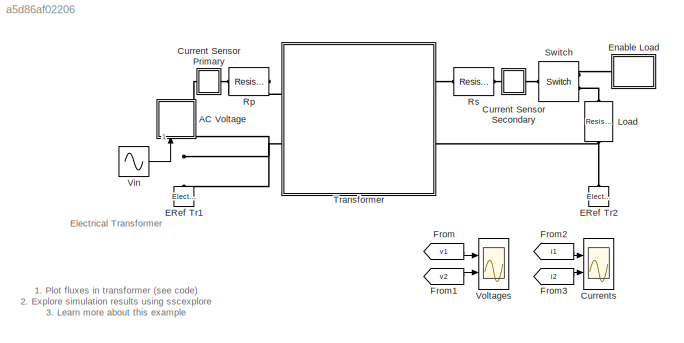
MODEL slx_a5d86af02206
KIND model
CONFIG AbsTol = auto
CONFIG EnableMultiTasking = on
CONFIG FixedStep = auto
CONFIG MaxStep = 5e-5
CONFIG MinStep = auto
CONFIG PreLoadFcn = L1 = 0.75*2.54e-2;  % 0.75 inch\nL2 = 1.5*2.54e-2 ;  % 1.5 inch\nArea = L1*L1;
CONFIG RelTol = 1e-3
CONFIG SampleTimeConstraint = Unconstrained
CONFIG Solver = VariableStepAuto
CONFIG SolverName = VariableStepAuto
CONFIG StartTime = 0.0
CONFIG StopTime = 1
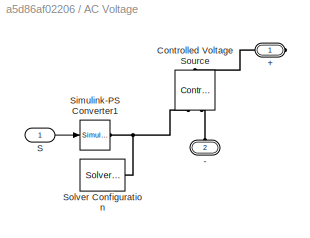
BLOCK [SubSystem] AC Voltage
  Ports = [1, 0, 0, 0, 0, 1, 1]
  RequestExecContextInheritance = off
  Variant = off
BLOCK [PMIOPort] AC Voltage/+
  Port = 1
  Side = Right
BLOCK [PMIOPort] AC Voltage/-
  Port = 2
  Side = Left
BLOCK [Reference] AC Voltage/Controlled Voltage Source  REF=fl_lib/Electrical/Electrical Sources/Controlled Voltage
Source
  Ports = [0, 0, 0, 0, 0, 1, 2]
  SourceBlock = fl_lib/Electrical/Electrical Sources/Controlled Voltage\nSource
  SourceType = Controlled Voltage\nSource
BLOCK [Inport] AC Voltage/S
  IconDisplay = Port number
BLOCK [Reference] AC Voltage/Simulink-PS Converter1  REF=nesl_utility/Simulink-PS
Converter
  Ports = [1, 0, 0, 0, 0, 0, 1]
  SourceBlock = nesl_utility/Simulink-PS\nConverter
  SourceType = Simulink-PS\nConverter
BLOCK [Reference] AC Voltage/Solver Configuration  REF=nesl_utility/Solver
Configuration
  Ports = [0, 0, 0, 0, 0, 0, 1]
  SourceBlock = nesl_utility/Solver\nConfiguration
  SourceType = Solver\nConfiguration
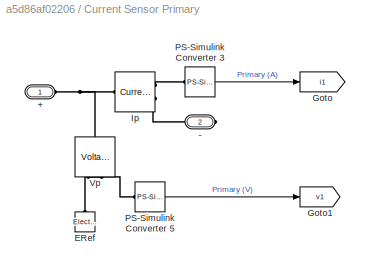
BLOCK [SubSystem] Current Sensor Primary
  Ports = [0, 0, 0, 0, 0, 1, 1]
  RequestExecContextInheritance = off
  Variant = off
BLOCK [PMIOPort] Current Sensor Primary/+
  Port = 1
  Side = Left
BLOCK [PMIOPort] Current Sensor Primary/-
  Port = 2
  Side = Right
BLOCK [Reference] Current Sensor Primary/ERef  REF=fl_lib/Electrical/Electrical Elements/Electrical Reference
  Ports = [0, 0, 0, 0, 0, 1]
  SourceBlock = fl_lib/Electrical/Electrical Elements/Electrical Reference
  SourceType = Electrical Reference
BLOCK [Goto] Current Sensor Primary/Goto
  GotoTag = i1
  TagVisibility = global
BLOCK [Goto] Current Sensor Primary/Goto1
  GotoTag = v1
  TagVisibility = global
BLOCK [Reference] Current Sensor Primary/Ip  REF=fl_lib/Electrical/Electrical Sensors/Current Sensor
  Ports = [0, 0, 0, 0, 0, 1, 2]
  SourceBlock = fl_lib/Electrical/Electrical Sensors/Current Sensor
  SourceType = Current Sensor
BLOCK [Reference] Current Sensor Primary/PS-Simulink Converter 3  REF=nesl_utility/PS-Simulink
Converter
  Ports = [0, 1, 0, 0, 0, 1]
  SourceBlock = nesl_utility/PS-Simulink\nConverter
  SourceType = PS-Simulink\nConverter
BLOCK [Reference] Current Sensor Primary/PS-Simulink Converter 5  REF=nesl_utility/PS-Simulink
Converter
  Ports = [0, 1, 0, 0, 0, 1]
  SourceBlock = nesl_utility/PS-Simulink\nConverter
  SourceType = PS-Simulink\nConverter
BLOCK [Reference] Current Sensor Primary/Vp  REF=fl_lib/Electrical/Electrical Sensors/Voltage Sensor
  Ports = [0, 0, 0, 0, 0, 1, 2]
  SourceBlock = fl_lib/Electrical/Electrical Sensors/Voltage Sensor
  SourceType = Voltage Sensor
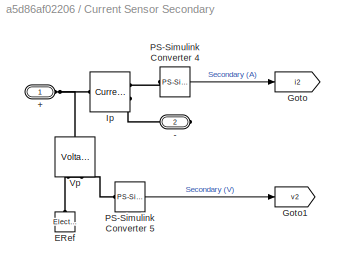
BLOCK [SubSystem] Current Sensor Secondary
  Ports = [0, 0, 0, 0, 0, 1, 1]
  RequestExecContextInheritance = off
  Variant = off
BLOCK [PMIOPort] Current Sensor Secondary/+
  Port = 1
  Side = Left
BLOCK [PMIOPort] Current Sensor Secondary/-
  Port = 2
  Side = Right
BLOCK [Reference] Current Sensor Secondary/ERef  REF=fl_lib/Electrical/Electrical Elements/Electrical Reference
  Ports = [0, 0, 0, 0, 0, 1]
  SourceBlock = fl_lib/Electrical/Electrical Elements/Electrical Reference
  SourceType = Electrical Reference
BLOCK [Goto] Current Sensor Secondary/Goto
  GotoTag = i2
  TagVisibility = global
BLOCK [Goto] Current Sensor Secondary/Goto1
  GotoTag = v2
  TagVisibility = global
BLOCK [Reference] Current Sensor Secondary/Ip  REF=fl_lib/Electrical/Electrical Sensors/Current Sensor
  Ports = [0, 0, 0, 0, 0, 1, 2]
  SourceBlock = fl_lib/Electrical/Electrical Sensors/Current Sensor
  SourceType = Current Sensor
BLOCK [Reference] Current Sensor Secondary/PS-Simulink Converter 4  REF=nesl_utility/PS-Simulink
Converter
  Ports = [0, 1, 0, 0, 0, 1]
  SourceBlock = nesl_utility/PS-Simulink\nConverter
  SourceType = PS-Simulink\nConverter
BLOCK [Reference] Current Sensor Secondary/PS-Simulink Converter 5  REF=nesl_utility/PS-Simulink
Converter
  Ports = [0, 1, 0, 0, 0, 1]
  SourceBlock = nesl_utility/PS-Simulink\nConverter
  SourceType = PS-Simulink\nConverter
BLOCK [Reference] Current Sensor Secondary/Vp  REF=fl_lib/Electrical/Electrical Sensors/Voltage Sensor
  Ports = [0, 0, 0, 0, 0, 1, 2]
  SourceBlock = fl_lib/Electrical/Electrical Sensors/Voltage Sensor
  SourceType = Voltage Sensor
BLOCK [Scope] Currents
  NumInputPorts = 2
  Ports = [2]
  ScopeSpecificationString = Simulink.scopes.TimeScopeBlockCfg('CurrentConfiguration', extmgr.ConfigurationSet(extmgr.Configuration('Core','General UI',true),extmgr.Configuration('Core','Source UI',true),extmgr.Configuration('Sources','WiredSimulink',true,'DataLoggingVariableName','ScopeData1','DataLoggingSaveFormat','StructureWithTime','DataLoggingDecimation','1'),extmgr.Configuration('Visuals','Time Domain',true,'Serialized...<+2372ch>
BLOCK [Reference] ERef Tr1  REF=fl_lib/Electrical/Electrical Elements/Electrical Reference
  Ports = [0, 0, 0, 0, 0, 1]
  SourceBlock = fl_lib/Electrical/Electrical Elements/Electrical Reference
  SourceType = Electrical Reference
BLOCK [Reference] ERef Tr2  REF=fl_lib/Electrical/Electrical Elements/Electrical Reference
  Ports = [0, 0, 0, 0, 0, 1]
  SourceBlock = fl_lib/Electrical/Electrical Elements/Electrical Reference
  SourceType = Electrical Reference
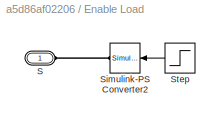
BLOCK [SubSystem] Enable Load
  Ports = [0, 0, 0, 0, 0, 1]
  RequestExecContextInheritance = off
  Variant = off
BLOCK [PMIOPort] Enable Load/S
  Port = 1
  Side = Left
BLOCK [Reference] Enable Load/Simulink-PS Converter2  REF=nesl_utility/Simulink-PS
Converter
  Ports = [1, 0, 0, 0, 0, 0, 1]
  SourceBlock = nesl_utility/Simulink-PS\nConverter
  SourceType = Simulink-PS\nConverter
BLOCK [Step] Enable Load/Step
  SampleTime = 0
  Time = 0.5
BLOCK [From] From
  GotoTag = v1
  TagVisibility = global
BLOCK [From] From1
  GotoTag = v2
  TagVisibility = global
BLOCK [From] From2
  GotoTag = i1
  TagVisibility = global
BLOCK [From] From3
  GotoTag = i2
  TagVisibility = global
BLOCK [Reference] Load  REF=fl_lib/Electrical/Electrical Elements/Resistor
  Ports = [0, 0, 0, 0, 0, 1, 1]
  SourceBlock = fl_lib/Electrical/Electrical Elements/Resistor
  SourceType = Resistor
BLOCK [Reference] Rp  REF=fl_lib/Electrical/Electrical Elements/Resistor
  Ports = [0, 0, 0, 0, 0, 1, 1]
  SourceBlock = fl_lib/Electrical/Electrical Elements/Resistor
  SourceType = Resistor
BLOCK [Reference] Rs  REF=fl_lib/Electrical/Electrical Elements/Resistor
  Ports = [0, 0, 0, 0, 0, 1, 1]
  SourceBlock = fl_lib/Electrical/Electrical Elements/Resistor
  SourceType = Resistor
BLOCK [Reference] Switch  REF=fl_lib/Electrical/Electrical Elements/Switch
  Ports = [0, 0, 0, 0, 0, 1, 2]
  SourceBlock = fl_lib/Electrical/Electrical Elements/Switch
  SourceType = Switch
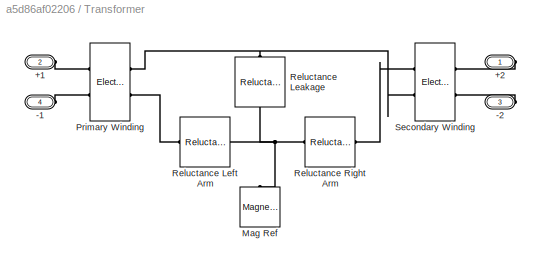
BLOCK [SubSystem] Transformer
  Ports = [0, 0, 0, 0, 0, 2, 2]
  RequestExecContextInheritance = off
  Tag = PublishSubsystem
  Variant = off
BLOCK [PMIOPort] Transformer/+1
  Port = 2
  Side = Left
BLOCK [PMIOPort] Transformer/+2
  Port = 1
  Side = Right
BLOCK [PMIOPort] Transformer/-1
  Port = 4
  Side = Left
BLOCK [PMIOPort] Transformer/-2
  Port = 3
  Side = Right
BLOCK [Reference] Transformer/Mag Ref  REF=fl_lib/Magnetic/Magnetic Elements/Magnetic Reference
  Ports = [0, 0, 0, 0, 0, 1]
  SourceBlock = fl_lib/Magnetic/Magnetic Elements/Magnetic Reference
  SourceType = Magnetic Reference
BLOCK [Reference] Transformer/Primary Winding  REF=fl_lib/Magnetic/Magnetic Elements/Electromagnetic
Converter
  Ports = [0, 0, 0, 0, 0, 2, 2]
  SourceBlock = fl_lib/Magnetic/Magnetic Elements/Electromagnetic\nConverter
  SourceType = Electromagnetic\nConverter
BLOCK [Reference] Transformer/Reluctance Leakage  REF=fl_lib/Magnetic/Magnetic Elements/Reluctance
  Ports = [0, 0, 0, 0, 0, 1, 1]
  SourceBlock = fl_lib/Magnetic/Magnetic Elements/Reluctance
  SourceType = Reluctance
BLOCK [Reference] Transformer/Reluctance Left Arm  REF=fl_lib/Magnetic/Magnetic Elements/Reluctance
  Ports = [0, 0, 0, 0, 0, 1, 1]
  SourceBlock = fl_lib/Magnetic/Magnetic Elements/Reluctance
  SourceType = Reluctance
BLOCK [Reference] Transformer/Reluctance Right Arm  REF=fl_lib/Magnetic/Magnetic Elements/Reluctance
  Ports = [0, 0, 0, 0, 0, 1, 1]
  SourceBlock = fl_lib/Magnetic/Magnetic Elements/Reluctance
  SourceType = Reluctance
BLOCK [Reference] Transformer/Secondary Winding  REF=fl_lib/Magnetic/Magnetic Elements/Electromagnetic
Converter
  Ports = [0, 0, 0, 0, 0, 2, 2]
  SourceBlock = fl_lib/Magnetic/Magnetic Elements/Electromagnetic\nConverter
  SourceType = Electromagnetic\nConverter
BLOCK [Sin] Vin
  Amplitude = 120*sqrt(2)
  Frequency = 2*pi*60
  Phase = pi/2
  Ports = [0, 1]
  SampleTime = 0
BLOCK [Scope] Voltages
  NumInputPorts = 2
  Ports = [2]
  ScopeSpecificationString = Simulink.scopes.TimeScopeBlockCfg('CurrentConfiguration', extmgr.ConfigurationSet(extmgr.Configuration('Core','General UI',true),extmgr.Configuration('Core','Source UI',true),extmgr.Configuration('Sources','WiredSimulink',true,'DataLoggingVariableName','ScopeData2','DataLoggingSaveFormat','StructureWithTime','DataLoggingDecimation','1'),extmgr.Configuration('Visuals','Time Domain',true,'Serialized...<+2344ch>
ANNOTATION (root): 1. Plot fluxes in transformer ( see code ) 2. Explore simulation results using sscexplore 3. Learn more about this example
ANNOTATION (root): Electrical Transformer
LINE AC Voltage/S:1 -> AC Voltage/Simulink-PS Converter1:1
LINE Current Sensor Primary/PS-Simulink Converter 3:1 -> Current Sensor Primary/Goto:1
LINE Current Sensor Primary/PS-Simulink Converter 5:1 -> Current Sensor Primary/Goto1:1
LINE Current Sensor Secondary/PS-Simulink Converter 4:1 -> Current Sensor Secondary/Goto:1
LINE Current Sensor Secondary/PS-Simulink Converter 5:1 -> Current Sensor Secondary/Goto1:1
LINE Enable Load/Step:1 -> Enable Load/Simulink-PS Converter2:1
LINE From1:1 -> Voltages:2
LINE From2:1 -> Currents:1
LINE From3:1 -> Currents:2
LINE From:1 -> Voltages:1
LINE Vin:1 -> AC Voltage:1
PLINE AC Voltage/+:RConn1 -- AC Voltage/Controlled Voltage Source:LConn1
PLINE AC Voltage/-:RConn1 -- AC Voltage/Controlled Voltage Source:RConn2
PNET net1: AC Voltage/Controlled Voltage Source:RConn1 -- AC Voltage/Simulink-PS Converter1:RConn1 -- AC Voltage/Solver Configuration:RConn1
PNET net2: AC Voltage:LConn1 -- ERef Tr1:LConn1 -- Transformer:LConn2
PLINE AC Voltage:RConn1 -- Current Sensor Primary:LConn1
PNET net3: Current Sensor Primary/+:RConn1 -- Current Sensor Primary/Ip:LConn1 -- Current Sensor Primary/Vp:LConn1
PLINE Current Sensor Primary/-:RConn1 -- Current Sensor Primary/Ip:RConn2
PLINE Current Sensor Primary/ERef:LConn1 -- Current Sensor Primary/Vp:RConn2
PLINE Current Sensor Primary/Ip:RConn1 -- Current Sensor Primary/PS-Simulink Converter 3:LConn1
PLINE Current Sensor Primary/PS-Simulink Converter 5:LConn1 -- Current Sensor Primary/Vp:RConn1
PLINE Current Sensor Primary:RConn1 -- Rp:RConn1
PNET net4: Current Sensor Secondary/+:RConn1 -- Current Sensor Secondary/Ip:LConn1 -- Current Sensor Secondary/Vp:LConn1
PLINE Current Sensor Secondary/-:RConn1 -- Current Sensor Secondary/Ip:RConn2
PLINE Current Sensor Secondary/ERef:LConn1 -- Current Sensor Secondary/Vp:RConn2
PLINE Current Sensor Secondary/Ip:RConn1 -- Current Sensor Secondary/PS-Simulink Converter 4:LConn1
PLINE Current Sensor Secondary/PS-Simulink Converter 5:LConn1 -- Current Sensor Secondary/Vp:RConn1
PLINE Current Sensor Secondary:LConn1 -- Rs:LConn1
PLINE Current Sensor Secondary:RConn1 -- Switch:LConn1
PNET net5: ERef Tr2:LConn1 -- Load:RConn1 -- Transformer:RConn2
PLINE Enable Load/S:RConn1 -- Enable Load/Simulink-PS Converter2:RConn1
PLINE Enable Load:LConn1 -- Switch:RConn1
PLINE Load:LConn1 -- Switch:RConn2
PLINE Rp:LConn1 -- Transformer:LConn1
PLINE Rs:RConn1 -- Transformer:RConn1
PLINE Transformer/+1:RConn1 -- Transformer/Primary Winding:LConn1
PLINE Transformer/+2:RConn1 -- Transformer/Secondary Winding:LConn1
PLINE Transformer/-1:RConn1 -- Transformer/Primary Winding:LConn2
PLINE Transformer/-2:RConn1 -- Transformer/Secondary Winding:LConn2
PNET net6: Transformer/Mag Ref:LConn1 -- Transformer/Reluctance Leakage:RConn1 -- Transformer/Reluctance Left Arm:RConn1 -- Transformer/Reluctance Right Arm:LConn1
PNET net7: Transformer/Primary Winding:RConn1 -- Transformer/Reluctance Leakage:LConn1 -- Transformer/Secondary Winding:RConn2
PLINE Transformer/Primary Winding:RConn2 -- Transformer/Reluctance Left Arm:LConn1
PLINE Transformer/Reluctance Right Arm:RConn1 -- Transformer/Secondary Winding:RConn1
note: PNET lines group multi-terminal physical nets as a canonical sorted terminal list (undirected conserving connections); 2-terminal nets keep the pairwise PLINE form
